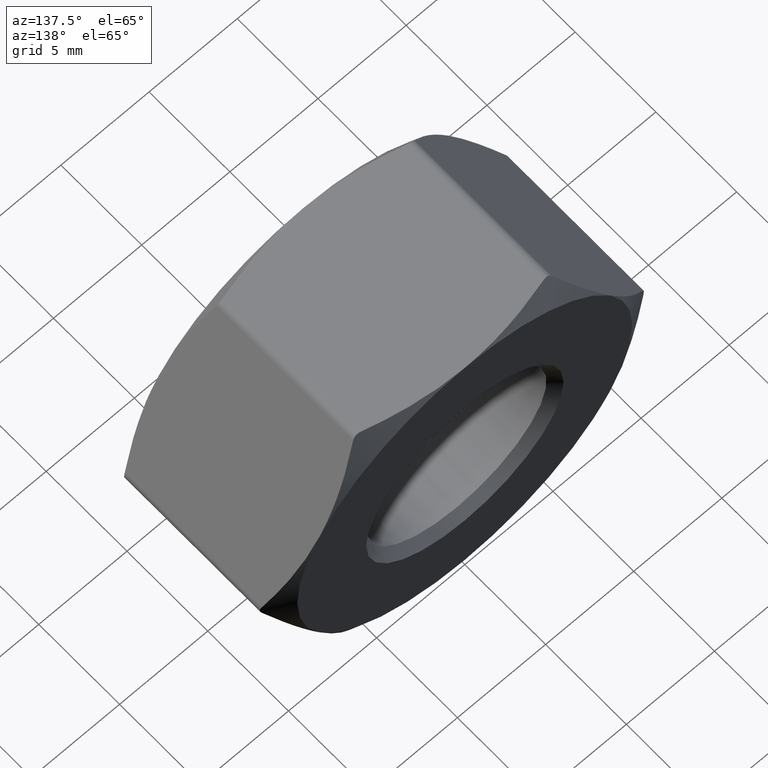
[diagram: clean part render]
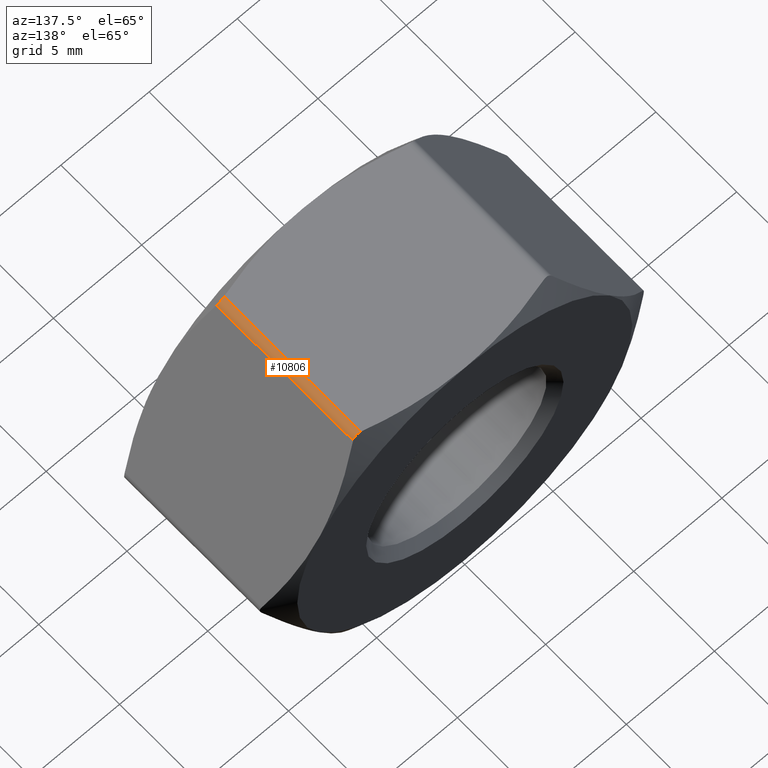
[diagram: same view with one face highlighted and labeled with its STEP entity id]
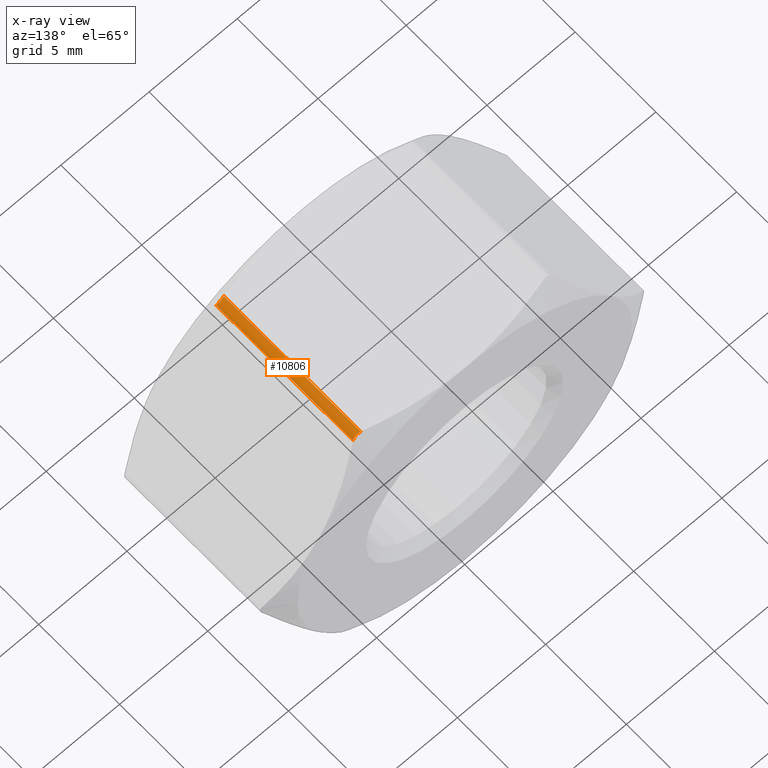
[diagram: x-ray of the same camera — body ghosted, the highlighted face saturated]
A machine part, auxiliary view. The second image highlights one B-rep face of the part: STEP entity #10806.
The next image is the same camera in x-ray: the body ghosted, the highlighted face saturated — about 0% of this face is hidden behind the body in this view.
In plain terms, the highlighted cylindrical surface (edge-blend (fillet) strip) has radius 0.5 mm, axis along (0, -1, 0).
Its self-contained STEP definition (entity closure, byte-faithful):
#142 = ORIENTED_EDGE ( 'NONE', *, *, #13406, .F. ) ;
#370 = CARTESIAN_POINT ( 'NONE',  ( 5.629165124598854300, 4.233161112797772000, 9.249999999999998200 ) ) ;
#591 = DIRECTION ( 'NONE',  ( 0.0000000000000000000, 0.0000000000000000000, -1.000000000000000000 ) ) ;
#1078 = ORIENTED_EDGE ( 'NONE', *, *, #13524, .F. ) ;
#1375 = CARTESIAN_POINT ( 'NONE',  ( 5.196152422706634700, -4.233161112797772000, 9.499999999999998200 ) ) ;
#2051 = CYLINDRICAL_SURFACE ( 'NONE', #7928, 0.5000000000000004400 ) ;
#2480 = CARTESIAN_POINT ( 'NONE',  ( 5.629165124598356100, -4.233161112797496600, 9.250000000000859800 ) ) ;
#3329 = EDGE_CURVE ( 'NONE', #13844, #12794, #13407, .T. ) ;
#3730 = EDGE_CURVE ( 'NONE', #12794, #7896, #13462, .T. ) ;
#3855 = VECTOR ( 'NONE', #7629, 1000.000000000000000 ) ;
#3876 = VERTEX_POINT ( 'NONE', #10428 ) ;
#3899 = CARTESIAN_POINT ( 'NONE',  ( 5.196152422706634700, 4.233161112797772000, 9.499999999999998200 ) ) ;
#3933 = ORIENTED_EDGE ( 'NONE', *, *, #3329, .F. ) ;
#4156 = CARTESIAN_POINT ( 'NONE',  ( 5.196152422706634700, 5.000000000000000000, 8.999999999999998200 ) ) ;
#4338 = CARTESIAN_POINT ( 'NONE',  ( 5.629165124598356100, -4.233161112797496600, 9.250000000000859800 ) ) ;
#5449 = B_SPLINE_CURVE_WITH_KNOTS ( 'NONE', 3,
 ( #3899, #7589, #14799, #13696, #10007, #370 ),
 .UNSPECIFIED., .F., .F.,
 ( 4, 2, 4 ),
 ( 0.0000000000000000000, 0.0002637781458274807300, 0.0005275562916549614500 ),
 .UNSPECIFIED. ) ;
#6699 = CARTESIAN_POINT ( 'NONE',  ( 5.196152422706634700, -4.233161112797772000, 9.499999999999998200 ) ) ;
#7316 = CARTESIAN_POINT ( 'NONE',  ( 5.196152422706634700, 4.233161112797772000, 9.499999999999998200 ) ) ;
#7589 = CARTESIAN_POINT ( 'NONE',  ( 5.282019346759062400, 4.209371315874231600, 9.499999999999998200 ) ) ;
#7629 = DIRECTION ( 'NONE',  ( -0.0000000000000000000, 1.000000000000000000, -0.0000000000000000000 ) ) ;
#7896 = VERTEX_POINT ( 'NONE', #7316 ) ;
#7913 = VECTOR ( 'NONE', #10115, 1000.000000000000000 ) ;
#7928 = AXIS2_PLACEMENT_3D ( 'NONE', #4156, #13802, #591 ) ;
#8257 = FACE_OUTER_BOUND ( 'NONE', #9977, .T. ) ;
#8798 = CARTESIAN_POINT ( 'NONE',  ( 5.629165124598854300, 5.000000000000000000, 9.249999999999998200 ) ) ;
#9186 = CARTESIAN_POINT ( 'NONE',  ( 5.522793143055061200, -4.196196110277374400, 9.388672582389867600 ) ) ;
#9591 = LINE ( 'NONE', #8798, #7913 ) ;
#9977 = EDGE_LOOP ( 'NONE', ( #142, #10344, #3933, #1078 ) ) ;
#10007 = CARTESIAN_POINT ( 'NONE',  ( 5.586216033881782100, 4.209362655883535500, 9.324390007260854300 ) ) ;
#10115 = DIRECTION ( 'NONE',  ( 0.0000000000000000000, -1.000000000000000000, 0.0000000000000000000 ) ) ;
#10344 = ORIENTED_EDGE ( 'NONE', *, *, #3730, .F. ) ;
#10409 = CARTESIAN_POINT ( 'NONE',  ( 5.370289189535668600, -4.196108957237652400, 9.476903473388143000 ) ) ;
#10428 = CARTESIAN_POINT ( 'NONE',  ( 5.629165124598854300, 4.233161112797772000, 9.249999999999998200 ) ) ;
#10806 = ADVANCED_FACE ( 'NONE', ( #8257 ), #2051, .T. ) ;
#12794 = VERTEX_POINT ( 'NONE', #1375 ) ;
#13406 = EDGE_CURVE ( 'NONE', #7896, #3876, #5449, .T. ) ;
#13407 = B_SPLINE_CURVE_WITH_KNOTS ( 'NONE', 3,
 ( #4338, #15156, #9186, #10409, #13924, #6699 ),
 .UNSPECIFIED., .F., .F.,
 ( 4, 2, 4 ),
 ( 9.650992615314286700E-016, 0.0002637781458279594000, 0.0005275562916549536500 ),
 .UNSPECIFIED. ) ;
#13462 = LINE ( 'NONE', #14843, #3855 ) ;
#13524 = EDGE_CURVE ( 'NONE', #3876, #13844, #9591, .T. ) ;
#13696 = CARTESIAN_POINT ( 'NONE',  ( 5.522094562399026100, 4.196108957237600900, 9.389258600501158000 ) ) ;
#13802 = DIRECTION ( 'NONE',  ( 0.0000000000000000000, -1.000000000000000000, 0.0000000000000000000 ) ) ;
#13844 = VERTEX_POINT ( 'NONE', #2480 ) ;
#13924 = CARTESIAN_POINT ( 'NONE',  ( 5.282050604140610300, -4.209362655883581700, 9.500000000000000000 ) ) ;
#14799 = CARTESIAN_POINT ( 'NONE',  ( 5.369432392635911100, 4.196196110277424100, 9.477215452927380200 ) ) ;
#14843 = CARTESIAN_POINT ( 'NONE',  ( 5.196152422706634700, 5.000000000000000000, 9.499999999999998200 ) ) ;
#15156 = CARTESIAN_POINT ( 'NONE',  ( 5.586231662572713800, -4.209371315873995400, 9.324362937574099100 ) ) ;